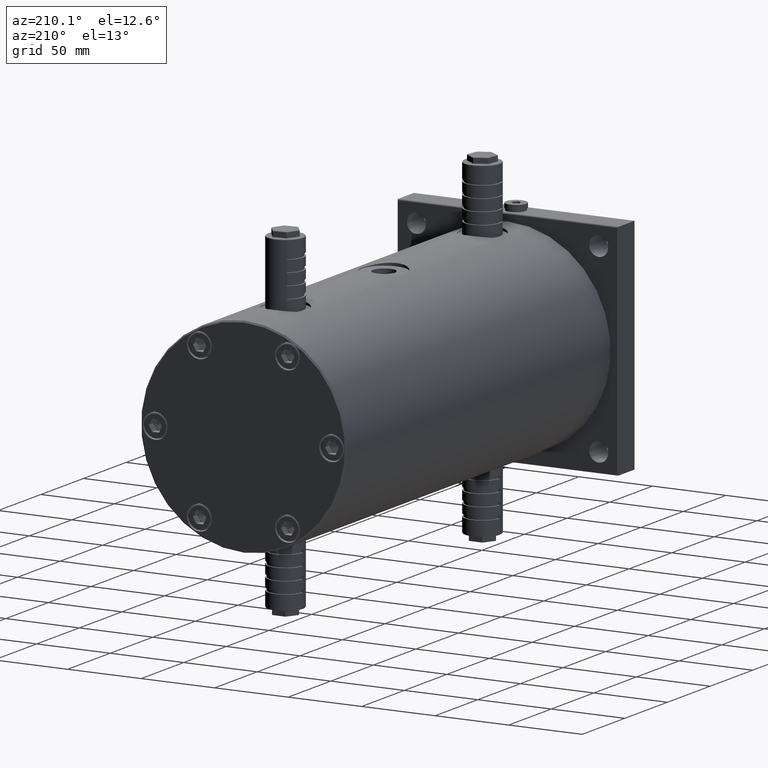
[diagram: clean part render]
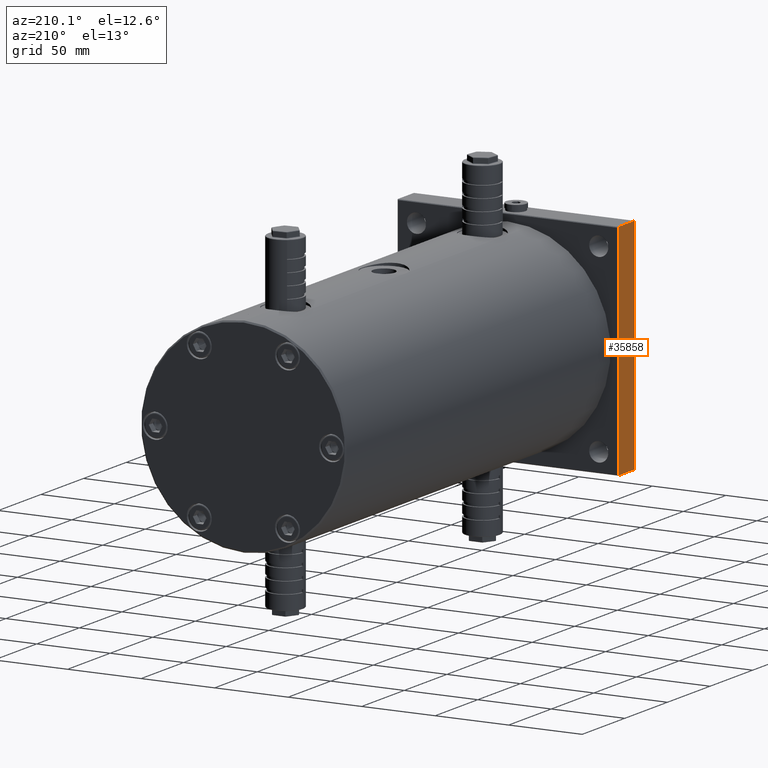
[diagram: same view with one face highlighted and labeled with its STEP entity id]
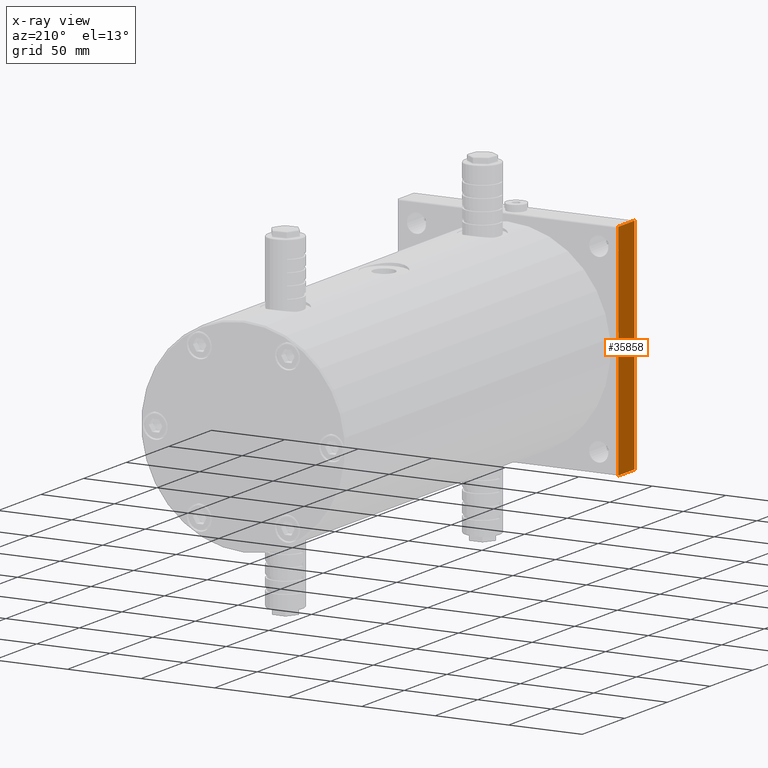
[diagram: x-ray of the same camera — body ghosted, the highlighted face saturated]
A machine part, auxiliary view. The second image highlights one B-rep face of the part: STEP entity #35858.
The next image is the same camera in x-ray: the body ghosted, the highlighted face saturated — about 0% of this face is hidden behind the body in this view.
In plain terms, the highlighted planar face has unit normal (1, 0, -0).
Its self-contained STEP definition (entity closure, byte-faithful):
#1896 = CARTESIAN_POINT ( 'NONE',  ( -75.00000000000000000, 20.00000000000000000, 75.00000000000000000 ) ) ;
#2718 = ORIENTED_EDGE ( 'NONE', *, *, #2972, .T. ) ;
#2972 = EDGE_CURVE ( 'NONE', #36715, #7702, #41006, .T. ) ;
#7702 = VERTEX_POINT ( 'NONE', #31760 ) ;
#8425 = CARTESIAN_POINT ( 'NONE',  ( -75.00000000000000000, 20.00000000000000000, -75.00000000000000000 ) ) ;
#8965 = LINE ( 'NONE', #14751, #18361 ) ;
#10703 = ORIENTED_EDGE ( 'NONE', *, *, #15585, .F. ) ;
#11182 = ORIENTED_EDGE ( 'NONE', *, *, #36743, .T. ) ;
#12823 = EDGE_LOOP ( 'NONE', ( #28342, #11182, #10703, #2718 ) ) ;
#13656 = FACE_OUTER_BOUND ( 'NONE', #12823, .T. ) ;
#14014 = CARTESIAN_POINT ( 'NONE',  ( -75.00000000000000000, 19.50000000000000000, -75.00000000000000000 ) ) ;
#14751 = CARTESIAN_POINT ( 'NONE',  ( -75.00000000000000000, 20.00000000000000000, -75.00000000000000000 ) ) ;
#14774 = DIRECTION ( 'NONE',  ( 0.0000000000000000000, -1.000000000000000000, 0.0000000000000000000 ) ) ;
#15585 = EDGE_CURVE ( 'NONE', #36715, #27297, #34944, .T. ) ;
#15590 = PLANE ( 'NONE',  #26220 ) ;
#16199 = VECTOR ( 'NONE', #35776, 1000.000000000000000 ) ;
#17904 = CARTESIAN_POINT ( 'NONE',  ( -75.00000000000000000, 19.50000000000000000, 75.00000000000000000 ) ) ;
#18361 = VECTOR ( 'NONE', #32293, 1000.000000000000000 ) ;
#18461 = VECTOR ( 'NONE', #26414, 1000.000000000000000 ) ;
#19343 = LINE ( 'NONE', #21572, #16199 ) ;
#20585 = CARTESIAN_POINT ( 'NONE',  ( -75.00000000000000000, 0.5000000000000000000, 75.00000000000000000 ) ) ;
#21572 = CARTESIAN_POINT ( 'NONE',  ( -75.00000000000000000, 0.5000000000000000000, -75.00000000000000000 ) ) ;
#25093 = DIRECTION ( 'NONE',  ( -9.251858538542969100E-017, 0.0000000000000000000, -1.000000000000000000 ) ) ;
#26220 = AXIS2_PLACEMENT_3D ( 'NONE', #8425, #29062, #25093 ) ;
#26414 = DIRECTION ( 'NONE',  ( -9.251858538542969100E-017, 0.0000000000000000000, -1.000000000000000000 ) ) ;
#27297 = VERTEX_POINT ( 'NONE', #20585 ) ;
#28342 = ORIENTED_EDGE ( 'NONE', *, *, #35856, .T. ) ;
#29062 = DIRECTION ( 'NONE',  ( 1.000000000000000000, 0.0000000000000000000, -9.251858538542969100E-017 ) ) ;
#29879 = VERTEX_POINT ( 'NONE', #37418 ) ;
#31760 = CARTESIAN_POINT ( 'NONE',  ( -75.00000000000000000, 19.50000000000000000, -75.00000000000000000 ) ) ;
#32293 = DIRECTION ( 'NONE',  ( 0.0000000000000000000, -1.000000000000000000, 0.0000000000000000000 ) ) ;
#34944 = LINE ( 'NONE', #1896, #41231 ) ;
#35776 = DIRECTION ( 'NONE',  ( 9.251858538542969100E-017, 0.0000000000000000000, 1.000000000000000000 ) ) ;
#35856 = EDGE_CURVE ( 'NONE', #7702, #29879, #8965, .T. ) ;
#35858 = ADVANCED_FACE ( 'NONE', ( #13656 ), #15590, .F. ) ;
#36715 = VERTEX_POINT ( 'NONE', #17904 ) ;
#36743 = EDGE_CURVE ( 'NONE', #29879, #27297, #19343, .T. ) ;
#37418 = CARTESIAN_POINT ( 'NONE',  ( -75.00000000000000000, 0.5000000000000000000, -75.00000000000000000 ) ) ;
#41006 = LINE ( 'NONE', #14014, #18461 ) ;
#41231 = VECTOR ( 'NONE', #14774, 1000.000000000000000 ) ;